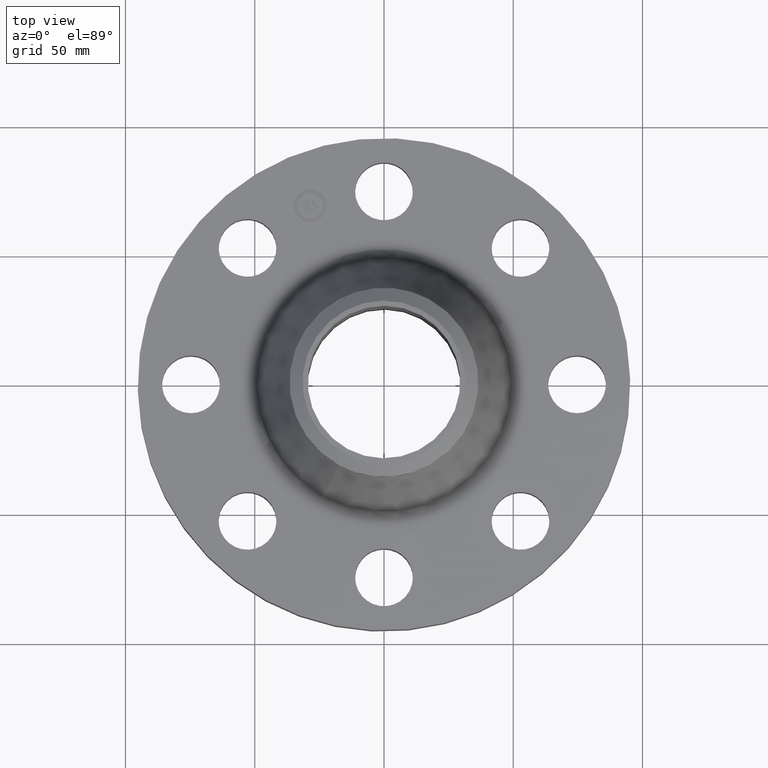
[diagram: clean part render]
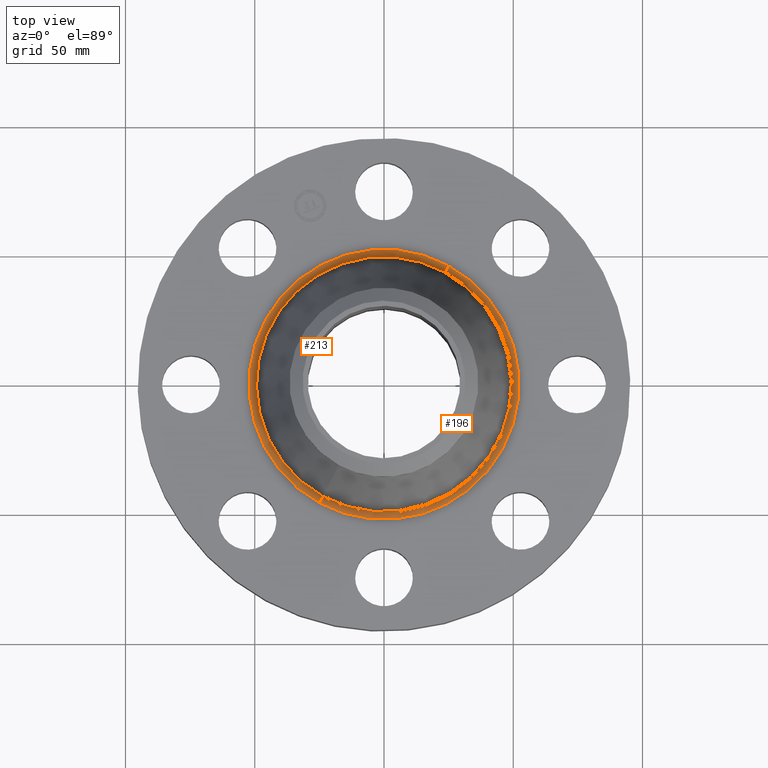
[diagram: same view with one multi-face feature highlighted, each face labeled with its STEP entity id]
A machine part, top view. The highlighted faces form ONE feature: a constant-radius fillet chain: 2 tangent blend faces with common blend radius 3.048 mm. The faces share edges in the B-rep.
Their STEP definitions:
[1] entity #213 (Torus):
#160=AXIS2_PLACEMENT_3D('Torus Axis2P3D',#157,#158,#159) ;
#173=AXIS2_PLACEMENT_3D('Circle Axis2P3D',#171,#172,$) ;
#187=AXIS2_PLACEMENT_3D('Circle Axis2P3D',#185,#186,$) ;
#199=AXIS2_PLACEMENT_3D('Circle Axis2P3D',#197,#198,$) ;
#204=AXIS2_PLACEMENT_3D('Circle Axis2P3D',#202,#203,$) ;
#157=CARTESIAN_POINT('Axis2P3D Location',(0.,0.,1.24)) ;
#166=CARTESIAN_POINT('Vertex',(0.986101697499,1.80504704963,1.12)) ;
#168=CARTESIAN_POINT('Vertex',(-0.986101697499,-1.80504704963,1.12)) ;
#171=CARTESIAN_POINT('Axis2P3D Location',(0.986101697499,1.80504704963,1.24)) ;
#175=CARTESIAN_POINT('Vertex',(0.931453780437,1.70501470843,1.2024881902)) ;
#182=CARTESIAN_POINT('Vertex',(-0.931453780437,-1.70501470843,1.2024881902)) ;
#185=CARTESIAN_POINT('Axis2P3D Location',(-0.986101697499,-1.80504704963,1.24)) ;
#197=CARTESIAN_POINT('Axis2P3D Location',(0.,0.,1.12)) ;
#202=CARTESIAN_POINT('Axis2P3D Location',(0.,0.,1.2024881902)) ;
#158=DIRECTION('Axis2P3D Direction',(0.,0.,-0.0393700787402)) ;
#159=DIRECTION('Axis2P3D XDirection',(-0.0188750212049,-0.0345504945626,0.)) ;
#172=DIRECTION('Axis2P3D Direction',(-0.0345504945626,0.0188750212049,0.)) ;
#186=DIRECTION('Axis2P3D Direction',(0.0345504945626,-0.0188750212049,0.)) ;
#198=DIRECTION('Axis2P3D Direction',(0.,0.,-0.0393700787402)) ;
#203=DIRECTION('Axis2P3D Direction',(0.,0.,-0.0393700787402)) ;
#208=ORIENTED_EDGE('',*,*,#201,.F.) ;
#209=ORIENTED_EDGE('',*,*,#189,.T.) ;
#210=ORIENTED_EDGE('',*,*,#206,.T.) ;
#211=ORIENTED_EDGE('',*,*,#177,.F.) ;
#213=ADVANCED_FACE('PartBody',(#212),#161,.F.) ;
#174=CIRCLE('generated circle',#173,0.12) ;
#188=CIRCLE('generated circle',#187,0.12) ;
#200=CIRCLE('generated circle',#199,2.05684015159) ;
#205=CIRCLE('generated circle',#204,1.94285390626) ;
#161=TOROIDAL_SURFACE('homeo Torus',#160,2.05684015159,0.12) ;
#177=EDGE_CURVE('',#167,#176,#174,.T.) ;
#189=EDGE_CURVE('',#169,#183,#188,.T.) ;
#201=EDGE_CURVE('',#169,#167,#200,.T.) ;
#206=EDGE_CURVE('',#183,#176,#205,.T.) ;
#207=EDGE_LOOP('',(#208,#209,#210,#211)) ;
#212=FACE_OUTER_BOUND('',#207,.T.) ;
#167=VERTEX_POINT('',#166) ;
#169=VERTEX_POINT('',#168) ;
#176=VERTEX_POINT('',#175) ;
#183=VERTEX_POINT('',#182) ;
[2] entity #196 (Torus):
#160=AXIS2_PLACEMENT_3D('Torus Axis2P3D',#157,#158,#159) ;
#164=AXIS2_PLACEMENT_3D('Circle Axis2P3D',#162,#163,$) ;
#173=AXIS2_PLACEMENT_3D('Circle Axis2P3D',#171,#172,$) ;
#180=AXIS2_PLACEMENT_3D('Circle Axis2P3D',#178,#179,$) ;
#187=AXIS2_PLACEMENT_3D('Circle Axis2P3D',#185,#186,$) ;
#157=CARTESIAN_POINT('Axis2P3D Location',(0.,0.,1.24)) ;
#162=CARTESIAN_POINT('Axis2P3D Location',(0.,0.,1.12)) ;
#166=CARTESIAN_POINT('Vertex',(0.986101697499,1.80504704963,1.12)) ;
#168=CARTESIAN_POINT('Vertex',(-0.986101697499,-1.80504704963,1.12)) ;
#171=CARTESIAN_POINT('Axis2P3D Location',(0.986101697499,1.80504704963,1.24)) ;
#175=CARTESIAN_POINT('Vertex',(0.931453780437,1.70501470843,1.2024881902)) ;
#178=CARTESIAN_POINT('Axis2P3D Location',(0.,0.,1.2024881902)) ;
#182=CARTESIAN_POINT('Vertex',(-0.931453780437,-1.70501470843,1.2024881902)) ;
#185=CARTESIAN_POINT('Axis2P3D Location',(-0.986101697499,-1.80504704963,1.24)) ;
#158=DIRECTION('Axis2P3D Direction',(0.,0.,-0.0393700787402)) ;
#159=DIRECTION('Axis2P3D XDirection',(-0.0188750212049,-0.0345504945626,0.)) ;
#163=DIRECTION('Axis2P3D Direction',(0.,0.,-0.0393700787402)) ;
#172=DIRECTION('Axis2P3D Direction',(-0.0345504945626,0.0188750212049,0.)) ;
#179=DIRECTION('Axis2P3D Direction',(0.,0.,-0.0393700787402)) ;
#186=DIRECTION('Axis2P3D Direction',(0.0345504945626,-0.0188750212049,0.)) ;
#191=ORIENTED_EDGE('',*,*,#170,.F.) ;
#192=ORIENTED_EDGE('',*,*,#177,.T.) ;
#193=ORIENTED_EDGE('',*,*,#184,.T.) ;
#194=ORIENTED_EDGE('',*,*,#189,.F.) ;
#196=ADVANCED_FACE('PartBody',(#195),#161,.F.) ;
#165=CIRCLE('generated circle',#164,2.05684015159) ;
#174=CIRCLE('generated circle',#173,0.12) ;
#181=CIRCLE('generated circle',#180,1.94285390626) ;
#188=CIRCLE('generated circle',#187,0.12) ;
#161=TOROIDAL_SURFACE('homeo Torus',#160,2.05684015159,0.12) ;
#170=EDGE_CURVE('',#167,#169,#165,.T.) ;
#177=EDGE_CURVE('',#167,#176,#174,.T.) ;
#184=EDGE_CURVE('',#176,#183,#181,.T.) ;
#189=EDGE_CURVE('',#169,#183,#188,.T.) ;
#190=EDGE_LOOP('',(#191,#192,#193,#194)) ;
#195=FACE_OUTER_BOUND('',#190,.T.) ;
#167=VERTEX_POINT('',#166) ;
#169=VERTEX_POINT('',#168) ;
#176=VERTEX_POINT('',#175) ;
#183=VERTEX_POINT('',#182) ;